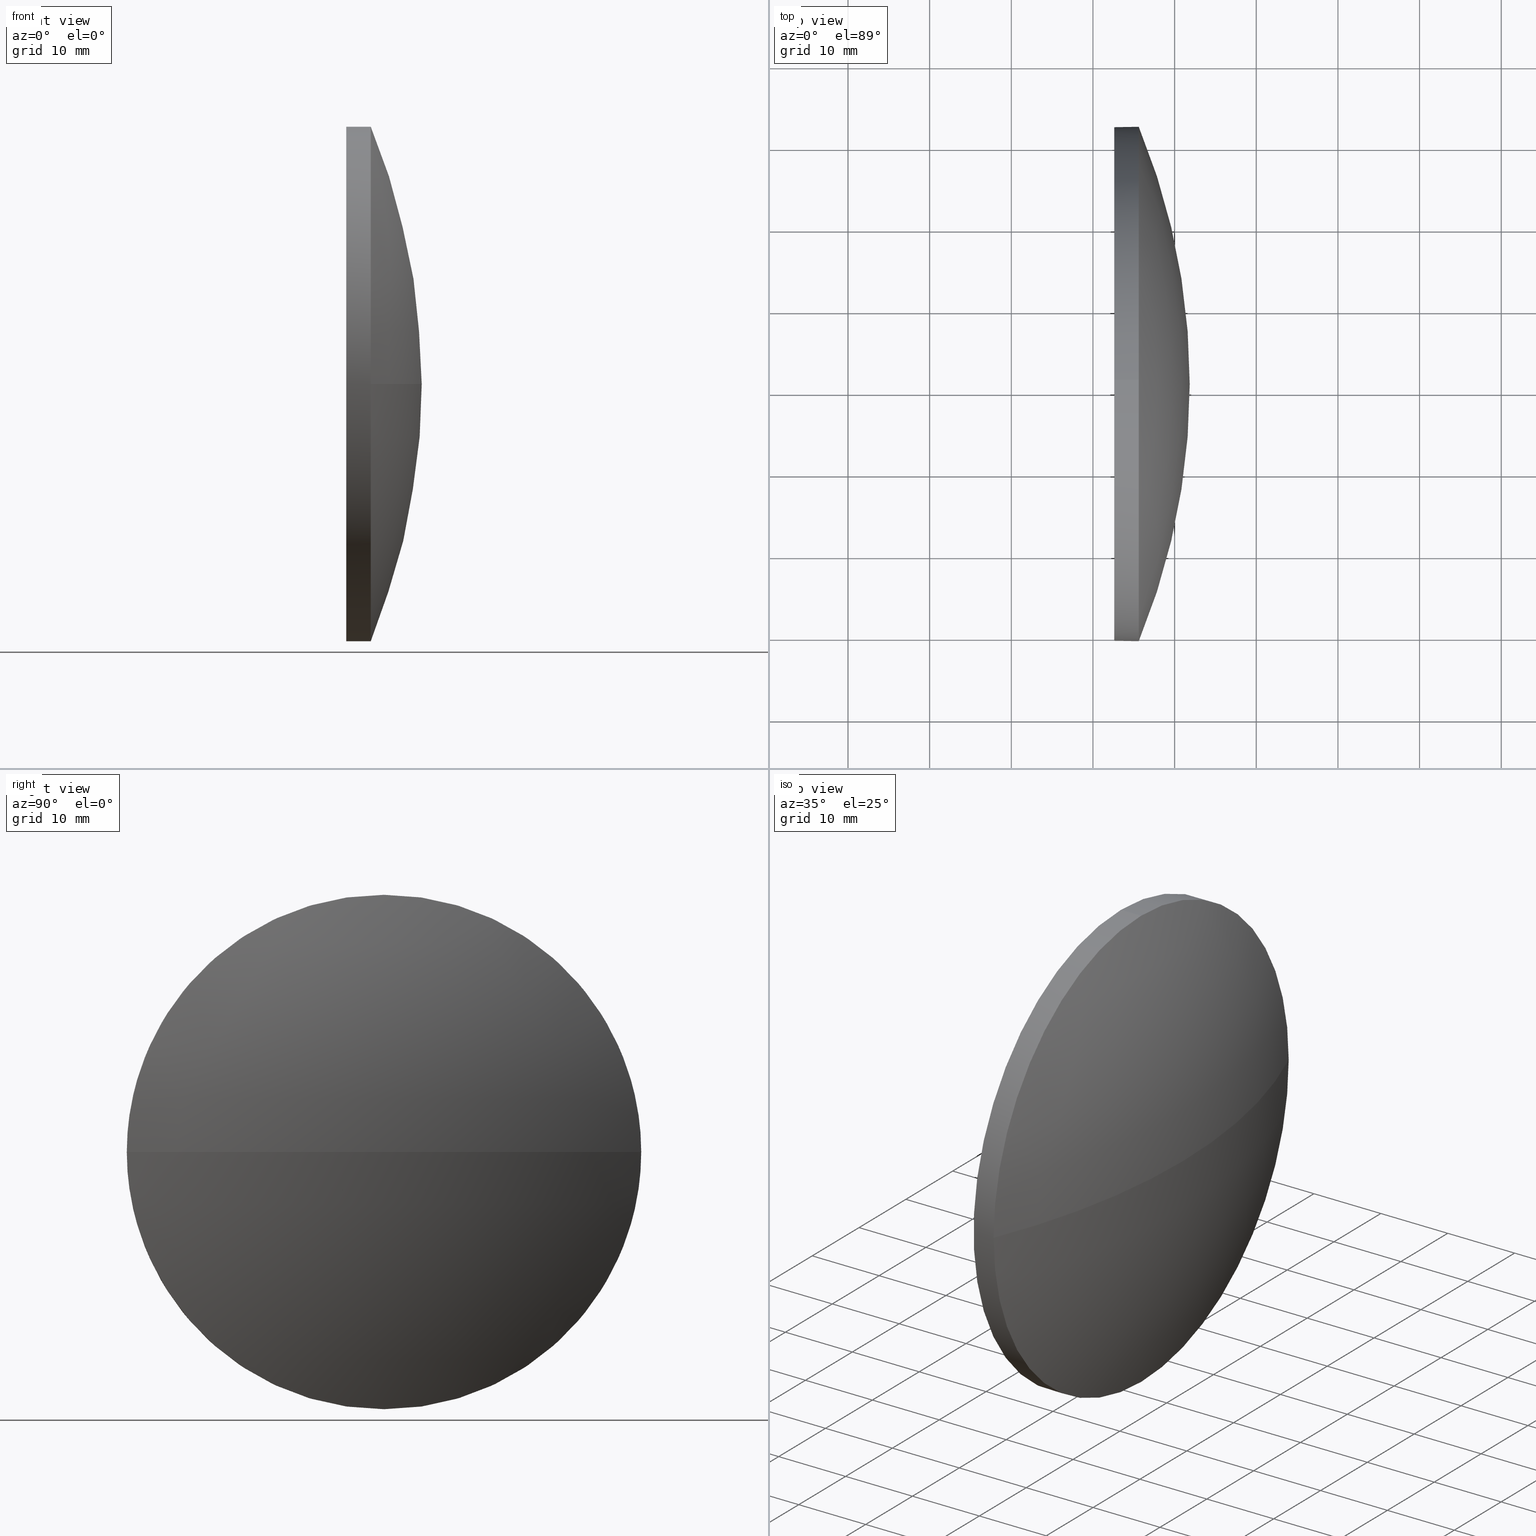
[diagram: canonical four-view strip — front | top / right | iso, engineering-drawing reading convention]
A machine part, canonical four-view strip (front | top / right | iso — engineering-drawing reading convention). The complete STEP part file that produces these views, byte-faithful:
ISO-10303-21;
HEADER;
FILE_DESCRIPTION (( 'STEP AP214' ),
    '1' );
FILE_NAME ('100160.STEP',
    '2019-05-16T08:01:47',
    ( '' ),
    ( '' ),
    'SwSTEP 2.0',
    'SolidWorks 2016',
    '' );
FILE_SCHEMA (( 'AUTOMOTIVE_DESIGN' ));
ENDSEC;

DATA;
#1 = ORIENTED_EDGE ( 'NONE', *, *, #85, .T. ) ;
#2 = AXIS2_PLACEMENT_3D ( 'NONE', #144, #104, #95 ) ;
#3 = VECTOR ( 'NONE', #45, 1000.000000000000000 ) ;
#4 = VECTOR ( 'NONE', #61, 1000.000000000000000 ) ;
#5 = ORIENTED_EDGE ( 'NONE', *, *, #80, .T. ) ;
#6 = CARTESIAN_POINT ( 'NONE',  ( 444.6402855359796100, 80.82132108647019200, 0.0000000000000000000 ) ) ;
#7 = DIRECTION ( 'NONE',  ( -0.0000000000000000000, 0.0000000000000000000, 1.000000000000000000 ) ) ;
#8 = EDGE_LOOP ( 'NONE', ( #83, #160, #145, #71, #162 ) ) ;
#9 = APPLICATION_PROTOCOL_DEFINITION ( 'draft international standard', 'automotive_design', 1998, #111 ) ;
#10 = CIRCLE ( 'NONE', #157, 31.50000000000000000 ) ;
#11 =( NAMED_UNIT ( * ) SI_UNIT ( $, .STERADIAN. ) SOLID_ANGLE_UNIT ( ) );
#12 = LINE ( 'NONE', #18, #3 ) ;
#13 = CARTESIAN_POINT ( 'NONE',  ( 452.6110172033103300, 80.82132108647019200, 0.0000000000000000000 ) ) ;
#14 = DIRECTION ( 'NONE',  ( -1.000000000000000000, -0.0000000000000000000, -0.0000000000000000000 ) ) ;
#15 = CLOSED_SHELL ( 'NONE', ( #70, #147, #65, #109, #24 ) ) ;
#16 = VERTEX_POINT ( 'NONE', #31 ) ;
#17 = PRODUCT ( '100160', '100160', '', ( #136 ) ) ;
#18 = CARTESIAN_POINT ( 'NONE',  ( 444.6402855359796100, 80.82132108647019200, 31.50000000000000000 ) ) ;
#19 = PRESENTATION_STYLE_ASSIGNMENT (( #51 ) ) ;
#20 = CARTESIAN_POINT ( 'NONE',  ( 452.6110172033103300, 80.82132108647019200, 0.0000000000000000000 ) ) ;
#21 = SURFACE_STYLE_USAGE ( .BOTH. , #148 ) ;
#22 =( NAMED_UNIT ( * ) SI_UNIT ( $, .STERADIAN. ) SOLID_ANGLE_UNIT ( ) );
#23 = SURFACE_STYLE_FILL_AREA ( #186 ) ;
#24 = ADVANCED_FACE ( 'NONE', ( #176 ), #178, .F. ) ;
#25 = FILL_AREA_STYLE_COLOUR ( '', #156 ) ;
#26 = ORIENTED_EDGE ( 'NONE', *, *, #96, .F. ) ;
#27 = PRODUCT_DEFINITION_CONTEXT ( 'detailed design', #112, 'design' ) ;
#28 = CARTESIAN_POINT ( 'NONE',  ( 455.6110172033103300, 49.32132108647017100, -3.857637417314163500E-015 ) ) ;
#29 = AXIS2_PLACEMENT_3D ( 'NONE', #146, #181, #67 ) ;
#30 = ORIENTED_EDGE ( 'NONE', *, *, #56, .F. ) ;
#31 = CARTESIAN_POINT ( 'NONE',  ( 452.6110172033103300, 80.82132108647019200, 31.50000000000000000 ) ) ;
#32 = PRESENTATION_LAYER_ASSIGNMENT (  '', '', ( #152 ) ) ;
#33 = CARTESIAN_POINT ( 'NONE',  ( 455.6110172033103300, 112.3213210864701900, 0.0000000000000000000 ) ) ;
#34 = EDGE_CURVE ( 'NONE', #60, #87, #118, .T. ) ;
#35 = DIRECTION ( 'NONE',  ( -1.000000000000000000, -0.0000000000000000000, -0.0000000000000000000 ) ) ;
#36 = CARTESIAN_POINT ( 'NONE',  ( 455.6110172033103300, 80.82132108647019200, 0.0000000000000000000 ) ) ;
#37 = CARTESIAN_POINT ( 'NONE',  ( 452.6110172033103300, 80.82132108647019200, -31.50000000000000000 ) ) ;
#38 = DIRECTION ( 'NONE',  ( 0.0000000000000000000, 1.000000000000000000, 0.0000000000000000000 ) ) ;
#39 = AXIS2_PLACEMENT_3D ( 'NONE', #142, #106, #62 ) ;
#40 = EDGE_LOOP ( 'NONE', ( #170, #129 ) ) ;
#41 = CIRCLE ( 'NONE', #90, 31.50000000000000000 ) ;
#42 = EDGE_CURVE ( 'NONE', #137, #60, #122, .T. ) ;
#43 =( GEOMETRIC_REPRESENTATION_CONTEXT ( 3 ) GLOBAL_UNCERTAINTY_ASSIGNED_CONTEXT ( ( #84 ) ) GLOBAL_UNIT_ASSIGNED_CONTEXT ( ( #72, #149, #22 ) ) REPRESENTATION_CONTEXT ( 'NONE', 'WORKASPACE' ) );
#44 = FACE_OUTER_BOUND ( 'NONE', #173, .T. ) ;
#45 = DIRECTION ( 'NONE',  ( -1.000000000000000000, -0.0000000000000000000, -0.0000000000000000000 ) ) ;
#46 = DIRECTION ( 'NONE',  ( -0.0000000000000000000, 0.0000000000000000000, -1.000000000000000000 ) ) ;
#47 = ORIENTED_EDGE ( 'NONE', *, *, #80, .F. ) ;
#48 = CARTESIAN_POINT ( 'NONE',  ( 455.6110172033103300, 80.82132108647019200, 31.50000000000000000 ) ) ;
#49 = UNCERTAINTY_MEASURE_WITH_UNIT (LENGTH_MEASURE( 1.000000000000000100E-005 ), #52, 'distance_accuracy_value', 'NONE');
#50 =( GEOMETRIC_REPRESENTATION_CONTEXT ( 3 ) GLOBAL_UNCERTAINTY_ASSIGNED_CONTEXT ( ( #124 ) ) GLOBAL_UNIT_ASSIGNED_CONTEXT ( ( #182, #81, #180 ) ) REPRESENTATION_CONTEXT ( 'NONE', 'WORKASPACE' ) );
#51 = SURFACE_STYLE_USAGE ( .BOTH. , #135 ) ;
#52 =( LENGTH_UNIT ( ) NAMED_UNIT ( * ) SI_UNIT ( .MILLI., .METRE. ) );
#53 = EDGE_LOOP ( 'NONE', ( #107, #1, #30, #102, #88 ) ) ;
#54 = APPLICATION_PROTOCOL_DEFINITION ( 'draft international standard', 'automotive_design', 1998, #112 ) ;
#55 = VERTEX_POINT ( 'NONE', #177 ) ;
#56 = EDGE_CURVE ( 'NONE', #16, #139, #41, .T. ) ;
#57 = PRESENTATION_STYLE_ASSIGNMENT (( #21 ) ) ;
#58 = AXIS2_PLACEMENT_3D ( 'NONE', #92, #7, #123 ) ;
#59 = AXIS2_PLACEMENT_3D ( 'NONE', #175, #119, #105 ) ;
#60 = VERTEX_POINT ( 'NONE', #28 ) ;
#61 = DIRECTION ( 'NONE',  ( -1.000000000000000000, -0.0000000000000000000, -0.0000000000000000000 ) ) ;
#62 = DIRECTION ( 'NONE',  ( 0.0000000000000000000, 0.0000000000000000000, -1.000000000000000000 ) ) ;
#63 = EDGE_CURVE ( 'NONE', #87, #16, #12, .T. ) ;
#64 = DIRECTION ( 'NONE',  ( -1.000000000000000000, -0.0000000000000000000, -0.0000000000000000000 ) ) ;
#65 = ADVANCED_FACE ( 'NONE', ( #44 ), #158, .T. ) ;
#66 = MECHANICAL_DESIGN_GEOMETRIC_PRESENTATION_REPRESENTATION (  '', ( #117 ), #98 ) ;
#67 = DIRECTION ( 'NONE',  ( 1.000000000000000000, 0.0000000000000000000, 0.0000000000000000000 ) ) ;
#68 = FILL_AREA_STYLE_COLOUR ( '', #132 ) ;
#69 = AXIS2_PLACEMENT_3D ( 'NONE', #36, #126, #78 ) ;
#70 = ADVANCED_FACE ( 'NONE', ( #82 ), #89, .T. ) ;
#71 = ORIENTED_EDGE ( 'NONE', *, *, #63, .T. ) ;
#72 =( LENGTH_UNIT ( ) NAMED_UNIT ( * ) SI_UNIT ( .MILLI., .METRE. ) );
#73 = AXIS2_PLACEMENT_3D ( 'NONE', #103, #46, #165 ) ;
#74 = CIRCLE ( 'NONE', #58, 82.62721153846142400 ) ;
#75 = AXIS2_PLACEMENT_3D ( 'NONE', #184, #138, #38 ) ;
#76 = CARTESIAN_POINT ( 'NONE',  ( 455.6110172033103300, 80.82132108647019200, 0.0000000000000000000 ) ) ;
#77 = DIRECTION ( 'NONE',  ( 0.0000000000000000000, 0.0000000000000000000, 1.000000000000000000 ) ) ;
#78 = DIRECTION ( 'NONE',  ( 0.0000000000000000000, 0.0000000000000000000, 1.000000000000000000 ) ) ;
#79 = DIRECTION ( 'NONE',  ( -1.000000000000000000, -0.0000000000000000000, -0.0000000000000000000 ) ) ;
#80 = EDGE_CURVE ( 'NONE', #55, #91, #74, .T. ) ;
#81 =( NAMED_UNIT ( * ) PLANE_ANGLE_UNIT ( ) SI_UNIT ( $, .RADIAN. ) );
#82 = FACE_OUTER_BOUND ( 'NONE', #53, .T. ) ;
#83 = ORIENTED_EDGE ( 'NONE', *, *, #85, .F. ) ;
#84 = UNCERTAINTY_MEASURE_WITH_UNIT (LENGTH_MEASURE( 1.000000000000000100E-005 ), #72, 'distance_accuracy_value', 'NONE');
#85 = EDGE_CURVE ( 'NONE', #137, #139, #171, .T. ) ;
#86 = SPHERICAL_SURFACE ( 'NONE', #75, 82.62721153846142400 ) ;
#87 = VERTEX_POINT ( 'NONE', #48 ) ;
#88 = ORIENTED_EDGE ( 'NONE', *, *, #96, .T. ) ;
#89 = CYLINDRICAL_SURFACE ( 'NONE', #110, 31.50000000000000000 ) ;
#90 = AXIS2_PLACEMENT_3D ( 'NONE', #20, #35, #166 ) ;
#91 = VERTEX_POINT ( 'NONE', #33 ) ;
#92 = CARTESIAN_POINT ( 'NONE',  ( 379.2238056648489000, 80.82132108647017800, 0.0000000000000000000 ) ) ;
#93 = MECHANICAL_DESIGN_GEOMETRIC_PRESENTATION_REPRESENTATION (  '', ( #152 ), #43 ) ;
#94 = CIRCLE ( 'NONE', #115, 82.62721153846141000 ) ;
#95 = DIRECTION ( 'NONE',  ( 0.0000000000000000000, 0.0000000000000000000, 1.000000000000000000 ) ) ;
#96 = EDGE_CURVE ( 'NONE', #87, #91, #168, .T. ) ;
#97 = EDGE_LOOP ( 'NONE', ( #47, #140, #185, #114 ) ) ;
#98 =( GEOMETRIC_REPRESENTATION_CONTEXT ( 3 ) GLOBAL_UNCERTAINTY_ASSIGNED_CONTEXT ( ( #49 ) ) GLOBAL_UNIT_ASSIGNED_CONTEXT ( ( #52, #169, #11 ) ) REPRESENTATION_CONTEXT ( 'NONE', 'WORKASPACE' ) );
#99 = ORIENTED_EDGE ( 'NONE', *, *, #141, .F. ) ;
#100 = ADVANCED_BREP_SHAPE_REPRESENTATION ( '100160', ( #154, #29 ), #50 ) ;
#101 = FACE_OUTER_BOUND ( 'NONE', #8, .T. ) ;
#102 = ORIENTED_EDGE ( 'NONE', *, *, #63, .F. ) ;
#103 = CARTESIAN_POINT ( 'NONE',  ( 379.2238056648489000, 80.82132108647017800, 0.0000000000000000000 ) ) ;
#104 = DIRECTION ( 'NONE',  ( -1.000000000000000000, -0.0000000000000000000, -0.0000000000000000000 ) ) ;
#105 = DIRECTION ( 'NONE',  ( 0.0000000000000000000, 0.0000000000000000000, 1.000000000000000000 ) ) ;
#106 = DIRECTION ( 'NONE',  ( 1.000000000000000000, 0.0000000000000000000, 0.0000000000000000000 ) ) ;
#107 = ORIENTED_EDGE ( 'NONE', *, *, #161, .T. ) ;
#108 = CARTESIAN_POINT ( 'NONE',  ( 379.2238056648489000, 80.82132108647017800, 0.0000000000000000000 ) ) ;
#109 = ADVANCED_FACE ( 'NONE', ( #101 ), #179, .T. ) ;
#110 = AXIS2_PLACEMENT_3D ( 'NONE', #6, #143, #164 ) ;
#111 = APPLICATION_CONTEXT ( 'automotive_design' ) ;
#112 = APPLICATION_CONTEXT ( 'automotive_design' ) ;
#113 = DIRECTION ( 'NONE',  ( 0.0000000000000000000, 0.0000000000000000000, 1.000000000000000000 ) ) ;
#114 = ORIENTED_EDGE ( 'NONE', *, *, #161, .F. ) ;
#115 = AXIS2_PLACEMENT_3D ( 'NONE', #108, #128, #151 ) ;
#116 = AXIS2_PLACEMENT_3D ( 'NONE', #76, #64, #77 ) ;
#117 = STYLED_ITEM ( 'NONE', ( #19 ), #100 ) ;
#118 = CIRCLE ( 'NONE', #116, 31.50000000000000000 ) ;
#119 = DIRECTION ( 'NONE',  ( -1.000000000000000000, -0.0000000000000000000, -0.0000000000000000000 ) ) ;
#120 = PRODUCT_RELATED_PRODUCT_CATEGORY ( 'part', '', ( #17 ) ) ;
#121 = EDGE_CURVE ( 'NONE', #139, #16, #10, .T. ) ;
#122 = CIRCLE ( 'NONE', #59, 31.50000000000000000 ) ;
#123 = DIRECTION ( 'NONE',  ( 1.000000000000000000, 0.0000000000000000000, 0.0000000000000000000 ) ) ;
#124 = UNCERTAINTY_MEASURE_WITH_UNIT (LENGTH_MEASURE( 1.000000000000000100E-005 ), #182, 'distance_accuracy_value', 'NONE');
#125 = CARTESIAN_POINT ( 'NONE',  ( 455.6110172033103300, 80.82132108647019200, 0.0000000000000000000 ) ) ;
#126 = DIRECTION ( 'NONE',  ( -1.000000000000000000, -0.0000000000000000000, -0.0000000000000000000 ) ) ;
#127 = DIRECTION ( 'NONE',  ( 0.0000000000000000000, 0.0000000000000000000, 1.000000000000000000 ) ) ;
#128 = DIRECTION ( 'NONE',  ( 0.0000000000000000000, 1.224646799147353200E-016, -1.000000000000000000 ) ) ;
#129 = ORIENTED_EDGE ( 'NONE', *, *, #121, .T. ) ;
#130 = PRODUCT_DEFINITION_FORMATION_WITH_SPECIFIED_SOURCE ( '�κ�', '', #17, .NOT_KNOWN. ) ;
#131 = CIRCLE ( 'NONE', #69, 31.50000000000000000 ) ;
#132 = COLOUR_RGB ( '',1.000000000000000000, 1.000000000000000000, 1.000000000000000000 ) ;
#133 = CARTESIAN_POINT ( 'NONE',  ( 444.6402855359796100, 80.82132108647019200, -31.50000000000000000 ) ) ;
#134 = SURFACE_STYLE_FILL_AREA ( #153 ) ;
#135 = SURFACE_SIDE_STYLE ('',( #23 ) ) ;
#136 = PRODUCT_CONTEXT ( 'NONE', #111, 'mechanical' ) ;
#137 = VERTEX_POINT ( 'NONE', #167 ) ;
#138 = DIRECTION ( 'NONE',  ( -0.0000000000000000000, 0.0000000000000000000, -1.000000000000000000 ) ) ;
#139 = VERTEX_POINT ( 'NONE', #37 ) ;
#140 = ORIENTED_EDGE ( 'NONE', *, *, #141, .T. ) ;
#141 = EDGE_CURVE ( 'NONE', #55, #60, #94, .T. ) ;
#142 = CARTESIAN_POINT ( 'NONE',  ( 452.6110172033103300, 80.82132108647019200, 0.0000000000000000000 ) ) ;
#143 = DIRECTION ( 'NONE',  ( -1.000000000000000000, -0.0000000000000000000, -0.0000000000000000000 ) ) ;
#144 = CARTESIAN_POINT ( 'NONE',  ( 444.6402855359796100, 80.82132108647019200, 0.0000000000000000000 ) ) ;
#145 = ORIENTED_EDGE ( 'NONE', *, *, #34, .T. ) ;
#146 = CARTESIAN_POINT ( 'NONE',  ( 0.0000000000000000000, 0.0000000000000000000, 0.0000000000000000000 ) ) ;
#147 = ADVANCED_FACE ( 'NONE', ( #174 ), #86, .T. ) ;
#148 = SURFACE_SIDE_STYLE ('',( #134 ) ) ;
#149 =( NAMED_UNIT ( * ) PLANE_ANGLE_UNIT ( ) SI_UNIT ( $, .RADIAN. ) );
#150 = ORIENTED_EDGE ( 'NONE', *, *, #34, .F. ) ;
#151 = DIRECTION ( 'NONE',  ( 0.0000000000000000000, 1.000000000000000000, 1.224646799147353500E-016 ) ) ;
#152 = STYLED_ITEM ( 'NONE', ( #57 ), #154 ) ;
#153 = FILL_AREA_STYLE ('',( #25 ) ) ;
#154 = MANIFOLD_SOLID_BREP ( '��ת1', #15 ) ;
#155 = PRESENTATION_LAYER_ASSIGNMENT (  '', '', ( #117 ) ) ;
#156 = COLOUR_RGB ( '',1.000000000000000000, 1.000000000000000000, 1.000000000000000000 ) ;
#157 = AXIS2_PLACEMENT_3D ( 'NONE', #13, #14, #113 ) ;
#158 = SPHERICAL_SURFACE ( 'NONE', #73, 82.62721153846142400 ) ;
#159 = PRODUCT_DEFINITION ( 'δ֪', '', #130, #27 ) ;
#160 = ORIENTED_EDGE ( 'NONE', *, *, #42, .T. ) ;
#161 = EDGE_CURVE ( 'NONE', #91, #137, #131, .T. ) ;
#162 = ORIENTED_EDGE ( 'NONE', *, *, #121, .F. ) ;
#163 = AXIS2_PLACEMENT_3D ( 'NONE', #125, #79, #127 ) ;
#164 = DIRECTION ( 'NONE',  ( 0.0000000000000000000, 0.0000000000000000000, 1.000000000000000000 ) ) ;
#165 = DIRECTION ( 'NONE',  ( 0.0000000000000000000, 1.000000000000000000, 0.0000000000000000000 ) ) ;
#166 = DIRECTION ( 'NONE',  ( 0.0000000000000000000, 0.0000000000000000000, 1.000000000000000000 ) ) ;
#167 = CARTESIAN_POINT ( 'NONE',  ( 455.6110172033103300, 80.82132108647019200, -31.50000000000000000 ) ) ;
#168 = CIRCLE ( 'NONE', #163, 31.50000000000000000 ) ;
#169 =( NAMED_UNIT ( * ) PLANE_ANGLE_UNIT ( ) SI_UNIT ( $, .RADIAN. ) );
#170 = ORIENTED_EDGE ( 'NONE', *, *, #56, .T. ) ;
#171 = LINE ( 'NONE', #133, #4 ) ;
#172 = SHAPE_DEFINITION_REPRESENTATION ( #183, #100 ) ;
#173 = EDGE_LOOP ( 'NONE', ( #99, #5, #26, #150 ) ) ;
#174 = FACE_OUTER_BOUND ( 'NONE', #97, .T. ) ;
#175 = CARTESIAN_POINT ( 'NONE',  ( 455.6110172033103300, 80.82132108647019200, 0.0000000000000000000 ) ) ;
#176 = FACE_OUTER_BOUND ( 'NONE', #40, .T. ) ;
#177 = CARTESIAN_POINT ( 'NONE',  ( 461.8510172033103300, 80.82132108647017800, 0.0000000000000000000 ) ) ;
#178 = PLANE ( 'NONE',  #39 ) ;
#179 = CYLINDRICAL_SURFACE ( 'NONE', #2, 31.50000000000000000 ) ;
#180 =( NAMED_UNIT ( * ) SI_UNIT ( $, .STERADIAN. ) SOLID_ANGLE_UNIT ( ) );
#181 = DIRECTION ( 'NONE',  ( 0.0000000000000000000, 0.0000000000000000000, 1.000000000000000000 ) ) ;
#182 =( LENGTH_UNIT ( ) NAMED_UNIT ( * ) SI_UNIT ( .MILLI., .METRE. ) );
#183 = PRODUCT_DEFINITION_SHAPE ( 'NONE', 'NONE',  #159 ) ;
#184 = CARTESIAN_POINT ( 'NONE',  ( 379.2238056648489000, 80.82132108647017800, 0.0000000000000000000 ) ) ;
#185 = ORIENTED_EDGE ( 'NONE', *, *, #42, .F. ) ;
#186 = FILL_AREA_STYLE ('',( #68 ) ) ;
ENDSEC;
END-ISO-10303-21;
